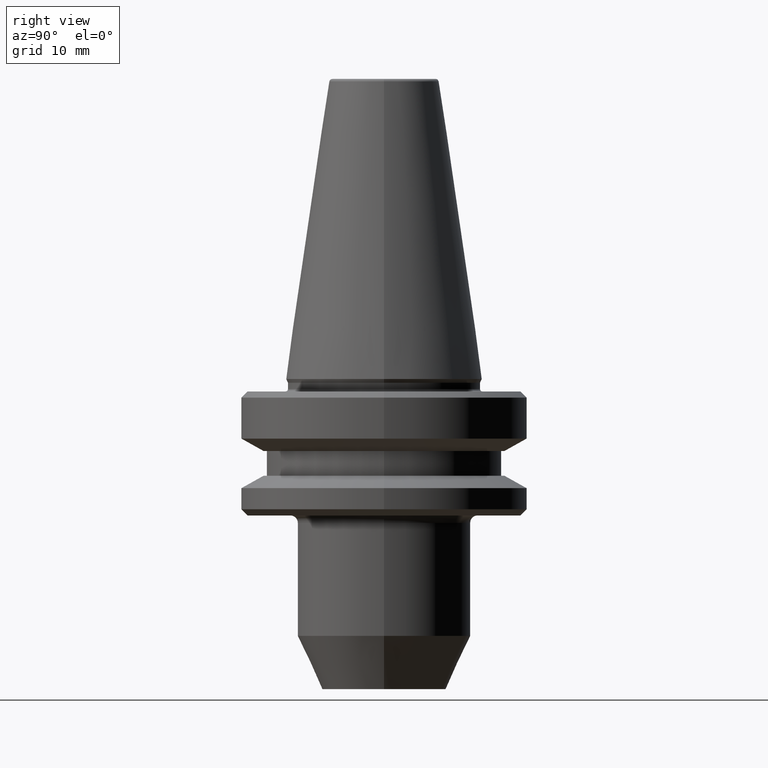
[diagram: clean part render]
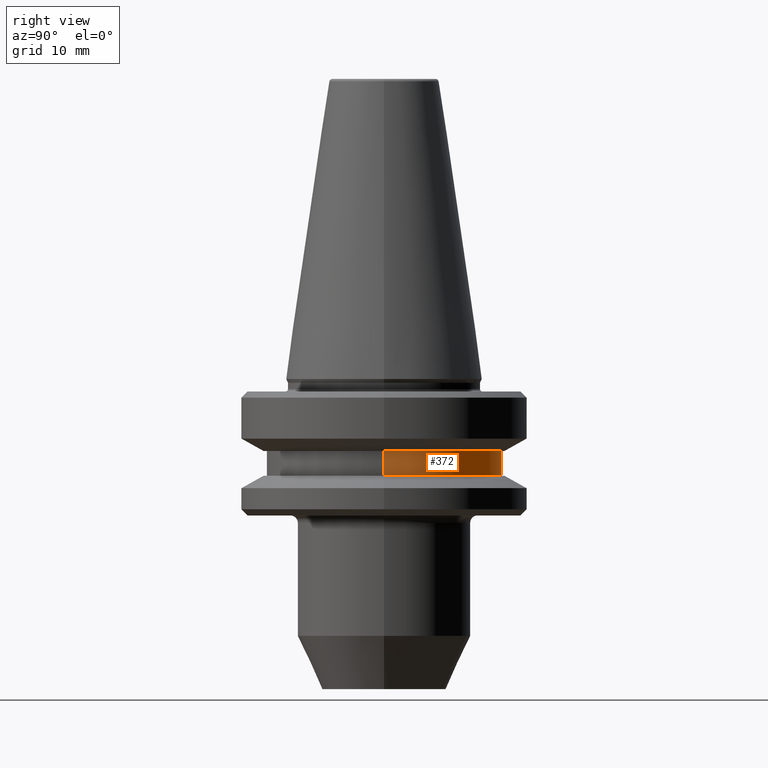
[diagram: same view with one face highlighted and labeled with its STEP entity id]
A machine part, right view. The second image highlights one B-rep face of the part: STEP entity #372.
In plain terms, the highlighted cylindrical surface (partial cylindrical patch) has radius 19 mm, axis along (-0, -0, 1).
Its self-contained STEP definition (entity closure, byte-faithful):
#58 = CARTESIAN_POINT ( 'NONE',  ( 19.00000000000012800, 0.0000000000000000000, 80.37668748141543100 ) ) ;
#76 = ORIENTED_EDGE ( 'NONE', *, *, #994, .T. ) ;
#104 = CIRCLE ( 'NONE', #647, 19.00000000000012800 ) ;
#109 = DIRECTION ( 'NONE',  ( -0.0000000000000000000, -0.0000000000000000000, 1.000000000000000000 ) ) ;
#126 = EDGE_CURVE ( 'NONE', #466, #910, #104, .T. ) ;
#133 = CYLINDRICAL_SURFACE ( 'NONE', #178, 19.00000000000012800 ) ;
#146 = DIRECTION ( 'NONE',  ( -0.0000000000000000000, -0.0000000000000000000, 1.000000000000000000 ) ) ;
#156 = CIRCLE ( 'NONE', #161, 19.00000000000012800 ) ;
#161 = AXIS2_PLACEMENT_3D ( 'NONE', #771, #276, #497 ) ;
#178 = AXIS2_PLACEMENT_3D ( 'NONE', #504, #146, #343 ) ;
#233 = ORIENTED_EDGE ( 'NONE', *, *, #561, .F. ) ;
#276 = DIRECTION ( 'NONE',  ( -0.0000000000000000000, -0.0000000000000000000, 1.000000000000000000 ) ) ;
#288 = VECTOR ( 'NONE', #857, 1000.000000000000000 ) ;
#290 = VERTEX_POINT ( 'NONE', #436 ) ;
#343 = DIRECTION ( 'NONE',  ( 1.000000000000000000, 0.0000000000000000000, 0.0000000000000000000 ) ) ;
#368 = LINE ( 'NONE', #58, #736 ) ;
#372 = ADVANCED_FACE ( 'NONE', ( #756 ), #133, .T. ) ;
#405 = CARTESIAN_POINT ( 'NONE',  ( -19.00000000000012800, 2.326828918379986700E-015, 80.37668748141543100 ) ) ;
#423 = EDGE_CURVE ( 'NONE', #722, #910, #710, .T. ) ;
#436 = CARTESIAN_POINT ( 'NONE',  ( 19.00000000000012800, 0.0000000000000000000, -15.59999999999983600 ) ) ;
#466 = VERTEX_POINT ( 'NONE', #996 ) ;
#497 = DIRECTION ( 'NONE',  ( 1.000000000000000000, 0.0000000000000000000, 0.0000000000000000000 ) ) ;
#504 = CARTESIAN_POINT ( 'NONE',  ( 0.0000000000000000000, 0.0000000000000000000, 80.37668748141543100 ) ) ;
#561 = EDGE_CURVE ( 'NONE', #290, #466, #368, .T. ) ;
#630 = CARTESIAN_POINT ( 'NONE',  ( -19.00000000000012800, 2.326828918379986700E-015, -11.59999999999938900 ) ) ;
#647 = AXIS2_PLACEMENT_3D ( 'NONE', #654, #920, #786 ) ;
#654 = CARTESIAN_POINT ( 'NONE',  ( 0.0000000000000000000, 0.0000000000000000000, -11.59999999999938900 ) ) ;
#710 = LINE ( 'NONE', #405, #288 ) ;
#722 = VERTEX_POINT ( 'NONE', #974 ) ;
#736 = VECTOR ( 'NONE', #109, 1000.000000000000000 ) ;
#756 = FACE_OUTER_BOUND ( 'NONE', #789, .T. ) ;
#771 = CARTESIAN_POINT ( 'NONE',  ( 0.0000000000000000000, 0.0000000000000000000, -15.59999999999983600 ) ) ;
#786 = DIRECTION ( 'NONE',  ( 1.000000000000000000, 0.0000000000000000000, 0.0000000000000000000 ) ) ;
#789 = EDGE_LOOP ( 'NONE', ( #76, #981, #947, #233 ) ) ;
#857 = DIRECTION ( 'NONE',  ( -0.0000000000000000000, -0.0000000000000000000, 1.000000000000000000 ) ) ;
#910 = VERTEX_POINT ( 'NONE', #630 ) ;
#920 = DIRECTION ( 'NONE',  ( -0.0000000000000000000, -0.0000000000000000000, 1.000000000000000000 ) ) ;
#947 = ORIENTED_EDGE ( 'NONE', *, *, #126, .F. ) ;
#974 = CARTESIAN_POINT ( 'NONE',  ( -19.00000000000012800, 2.326828918379986700E-015, -15.59999999999983600 ) ) ;
#981 = ORIENTED_EDGE ( 'NONE', *, *, #423, .T. ) ;
#994 = EDGE_CURVE ( 'NONE', #290, #722, #156, .T. ) ;
#996 = CARTESIAN_POINT ( 'NONE',  ( 19.00000000000012800, 0.0000000000000000000, -11.59999999999938900 ) ) ;